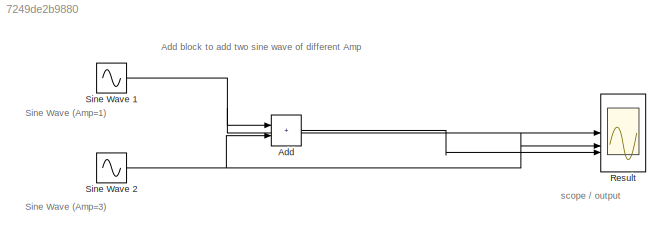
MODEL slx_7249de2b9880
KIND model
CONFIG AbsTol = auto
CONFIG EnableMultiTasking = off
CONFIG FixedStep = auto
CONFIG MaxStep = auto
CONFIG MinStep = auto
CONFIG RelTol = 1e-3
CONFIG SampleTimeConstraint = Unconstrained
CONFIG SolverName = VariableStepAuto
CONFIG StartTime = 0.0
CONFIG StopTime = 10.0
BLOCK [Sum] Add
  IconShape = rectangular
BLOCK [Scope] Result 
  Floating = off
  NumInputPorts = 3
  ScopeSpecificationString = Simulink.scopes.TimeScopeBlockCfg('CurrentConfiguration', extmgr.ConfigurationSet(extmgr.Configuration('Core','General UI',true),extmgr.Configuration('Core','Source UI',true),extmgr.Configuration('Sources','WiredSimulink',true),extmgr.Configuration('Visuals','Time Domain',true,'SerializedDisplays',{struct('MinYLimReal','-4.98253','MaxYLimReal','4.99616','YLabelReal','sine wave amp = 1','MinYLimMag...<+1718ch>
BLOCK [Sin] Sine Wave 1
  SampleTime = 0
BLOCK [Sin] Sine Wave 2
  Amplitude = 3
  SampleTime = 0
ANNOTATION (root): Add block to add two sine wave of different Amp
ANNOTATION (root): Sine Wave (Amp=1)
ANNOTATION (root): Sine Wave (Amp=3)
ANNOTATION (root): scope / output
LINE Add:1 -> Result :3
NET Sine Wave 1:1 -> Add:1, Result :1
NET Sine Wave 2:1 -> Add:2, Result :2
note: NET lines group one-source signal fan-out (src -> all destinations, sorted); 1:1 wires keep LINE
